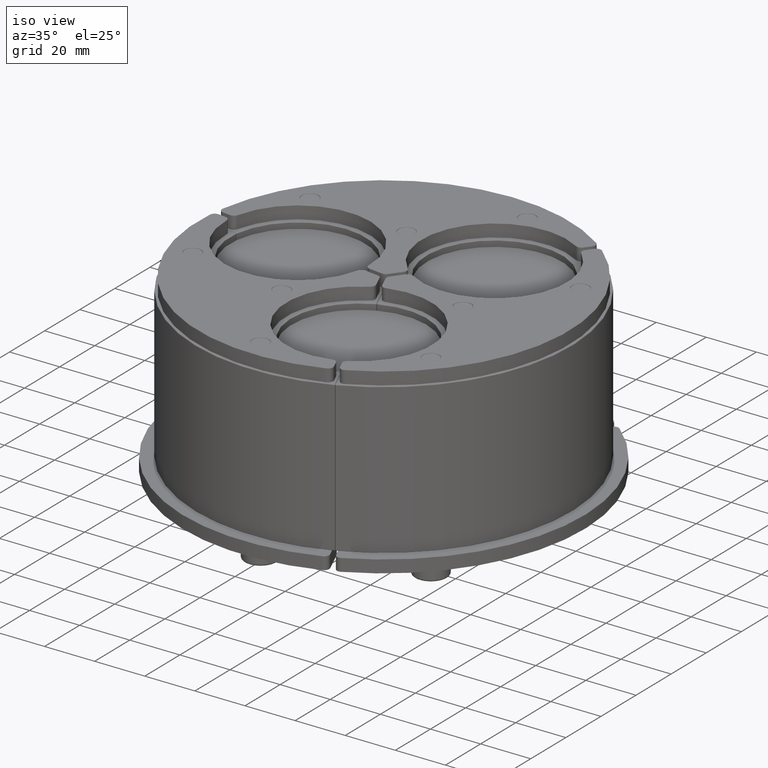
[diagram: clean part render]
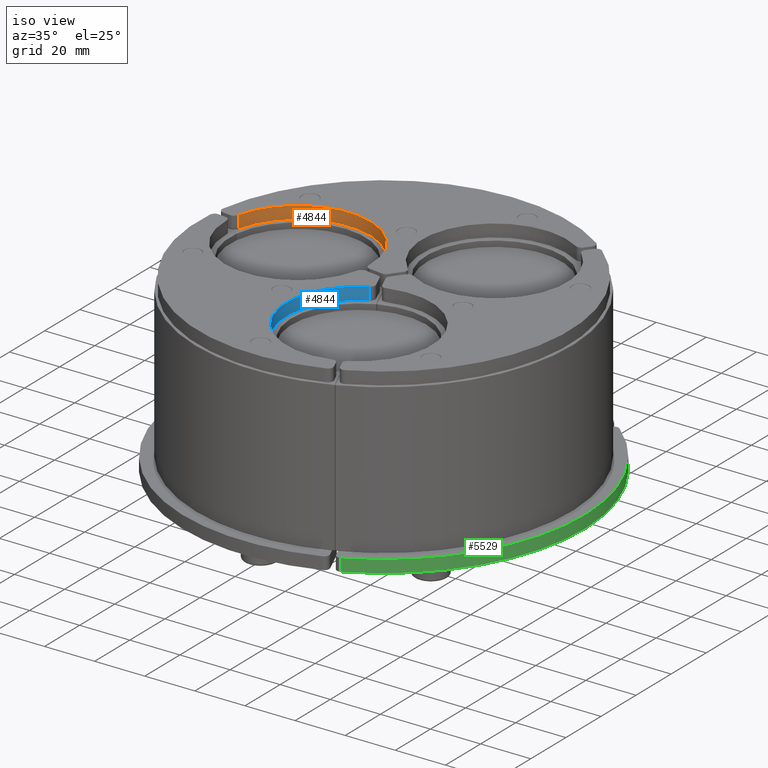
[diagram: same view with three faces highlighted in distinct colors, each labeled with its STEP entity id]
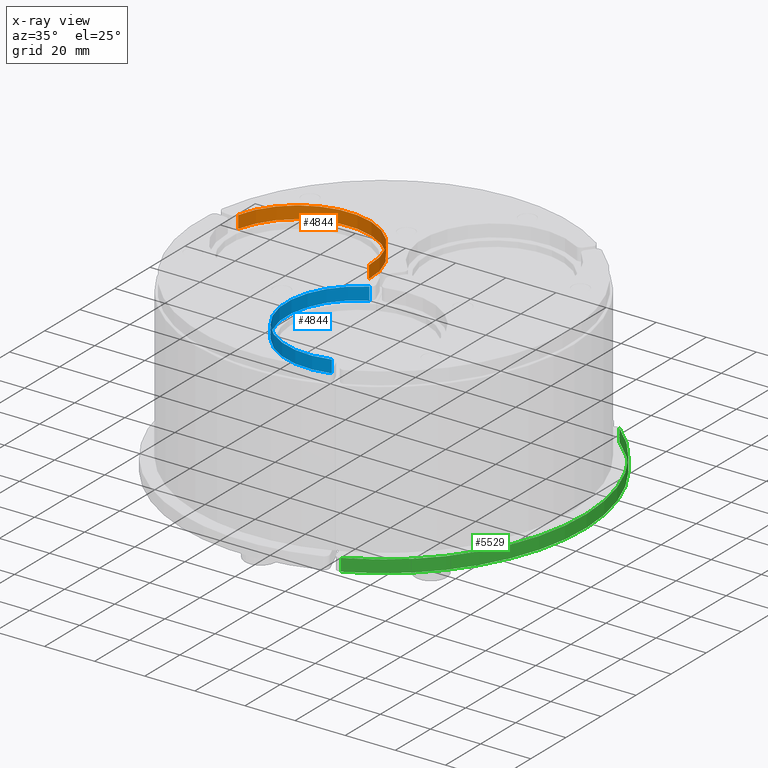
[diagram: x-ray of the same camera — body ghosted, the three highlighted faces saturated]
A machine part, iso view with three faces highlighted in distinct colors.
The next image is the same camera in x-ray (body ghosted, the three faces saturated) — at least one of them is partly hidden behind the body in this view.
Their STEP definitions:

[orange] entity #4844 — the highlighted cylindrical surface (partial cylindrical patch) has radius 29 mm, axis along (-0, -0, -1).
#4366=CARTESIAN_POINT('',(31.001483866659882,59.309048392888322,0.0));
#4367=VERTEX_POINT('',#4366);
#4375=CARTESIAN_POINT('',(2.137599350808055,9.315333907632265,0.0));
#4376=VERTEX_POINT('',#4375);
#4377=CARTESIAN_POINT('',(18.999999999999975,32.908965343808688,0.0));
#4378=DIRECTION('',(0.0,0.0,1.0));
#4379=DIRECTION('',(0.469839701462241,0.882751751586975,0.0));
#4380=AXIS2_PLACEMENT_3D('',#4377,#4378,#4379);
#4381=CIRCLE('',#4380,29.000000000000004);
#4382=EDGE_CURVE('',#4367,#4376,#4381,.T.);
#4534=CARTESIAN_POINT('',(31.001483866659882,59.309048392888322,5.0));
#4535=VERTEX_POINT('',#4534);
#4543=CARTESIAN_POINT('',(31.001483866659882,59.309048392888322,5.0));
#4544=DIRECTION('',(0.0,0.0,-1.0));
#4545=VECTOR('',#4544,5.0);
#4546=LINE('',#4543,#4545);
#4547=EDGE_CURVE('',#4535,#4367,#4546,.T.);
#4559=CARTESIAN_POINT('',(2.137599350808055,9.315333907632265,5.0));
#4560=VERTEX_POINT('',#4559);
#4577=CARTESIAN_POINT('',(2.137599350808053,9.315333907632265,0.0));
#4578=DIRECTION('',(0.0,0.0,1.0));
#4579=VECTOR('',#4578,5.0);
#4580=LINE('',#4577,#4579);
#4581=EDGE_CURVE('',#4376,#4560,#4580,.T.);
#4827=CARTESIAN_POINT('',(18.999999999999975,32.908965343808688,0.0));
#4828=DIRECTION('',(0.0,0.0,1.0));
#4829=DIRECTION('',(0.469839701462241,0.882751751586975,0.0));
#4830=AXIS2_PLACEMENT_3D('',#4827,#4828,#4829);
#4831=CYLINDRICAL_SURFACE('',#4830,29.000000000000004);
#4832=ORIENTED_EDGE('',*,*,#4547,.F.);
#4833=CARTESIAN_POINT('',(18.999999999999975,32.908965343808688,5.0));
#4834=DIRECTION('',(0.0,0.0,1.0));
#4835=DIRECTION('',(0.469839701462241,0.882751751586975,0.0));
#4836=AXIS2_PLACEMENT_3D('',#4833,#4834,#4835);
#4837=CIRCLE('',#4836,29.000000000000004);
#4838=EDGE_CURVE('',#4535,#4560,#4837,.T.);
#4839=ORIENTED_EDGE('',*,*,#4838,.T.);
#4840=ORIENTED_EDGE('',*,*,#4581,.F.);
#4841=ORIENTED_EDGE('',*,*,#4382,.F.);
#4842=EDGE_LOOP('',(#4832,#4839,#4840,#4841));
#4843=FACE_OUTER_BOUND('',#4842,.T.);
#4844=ADVANCED_FACE('',(#4843),#4831,.F.);

[blue] entity #4844 — the highlighted cylindrical surface (partial cylindrical patch) has radius 29 mm, axis along (-0, -0, -1).
#4366=CARTESIAN_POINT('',(31.001483866659882,59.309048392888322,0.0));
#4367=VERTEX_POINT('',#4366);
#4375=CARTESIAN_POINT('',(2.137599350808055,9.315333907632265,0.0));
#4376=VERTEX_POINT('',#4375);
#4377=CARTESIAN_POINT('',(18.999999999999975,32.908965343808688,0.0));
#4378=DIRECTION('',(0.0,0.0,1.0));
#4379=DIRECTION('',(0.469839701462241,0.882751751586975,0.0));
#4380=AXIS2_PLACEMENT_3D('',#4377,#4378,#4379);
#4381=CIRCLE('',#4380,29.000000000000004);
#4382=EDGE_CURVE('',#4367,#4376,#4381,.T.);
#4534=CARTESIAN_POINT('',(31.001483866659882,59.309048392888322,5.0));
#4535=VERTEX_POINT('',#4534);
#4543=CARTESIAN_POINT('',(31.001483866659882,59.309048392888322,5.0));
#4544=DIRECTION('',(0.0,0.0,-1.0));
#4545=VECTOR('',#4544,5.0);
#4546=LINE('',#4543,#4545);
#4547=EDGE_CURVE('',#4535,#4367,#4546,.T.);
#4559=CARTESIAN_POINT('',(2.137599350808055,9.315333907632265,5.0));
#4560=VERTEX_POINT('',#4559);
#4577=CARTESIAN_POINT('',(2.137599350808053,9.315333907632265,0.0));
#4578=DIRECTION('',(0.0,0.0,1.0));
#4579=VECTOR('',#4578,5.0);
#4580=LINE('',#4577,#4579);
#4581=EDGE_CURVE('',#4376,#4560,#4580,.T.);
#4827=CARTESIAN_POINT('',(18.999999999999975,32.908965343808688,0.0));
#4828=DIRECTION('',(0.0,0.0,1.0));
#4829=DIRECTION('',(0.469839701462241,0.882751751586975,0.0));
#4830=AXIS2_PLACEMENT_3D('',#4827,#4828,#4829);
#4831=CYLINDRICAL_SURFACE('',#4830,29.000000000000004);
#4832=ORIENTED_EDGE('',*,*,#4547,.F.);
#4833=CARTESIAN_POINT('',(18.999999999999975,32.908965343808688,5.0));
#4834=DIRECTION('',(0.0,0.0,1.0));
#4835=DIRECTION('',(0.469839701462241,0.882751751586975,0.0));
#4836=AXIS2_PLACEMENT_3D('',#4833,#4834,#4835);
#4837=CIRCLE('',#4836,29.000000000000004);
#4838=EDGE_CURVE('',#4535,#4560,#4837,.T.);
#4839=ORIENTED_EDGE('',*,*,#4838,.T.);
#4840=ORIENTED_EDGE('',*,*,#4581,.F.);
#4841=ORIENTED_EDGE('',*,*,#4382,.F.);
#4842=EDGE_LOOP('',(#4832,#4839,#4840,#4841));
#4843=FACE_OUTER_BOUND('',#4842,.T.);
#4844=ADVANCED_FACE('',(#4843),#4831,.F.);

[green] entity #5529 — the highlighted cylindrical surface (partial cylindrical patch) has radius 80 mm, axis along (-0, -0, -1).
#5075=CARTESIAN_POINT('',(37.305709701483337,70.769230769230887,5.0));
#5076=VERTEX_POINT('',#5075);
#5094=CARTESIAN_POINT('',(37.305709701483337,70.769230769230887,0.0));
#5095=VERTEX_POINT('',#5094);
#5103=CARTESIAN_POINT('',(37.305709701483337,70.769230769230887,0.0));
#5104=DIRECTION('',(0.0,0.0,1.0));
#5105=VECTOR('',#5104,5.0);
#5106=LINE('',#5103,#5105);
#5107=EDGE_CURVE('',#5095,#5076,#5106,.T.);
#5213=CARTESIAN_POINT('',(-79.940806503178976,3.076923076923021,0.0));
#5214=VERTEX_POINT('',#5213);
#5222=CARTESIAN_POINT('',(0.0,0.0,0.0));
#5223=DIRECTION('',(0.0,0.0,-1.0));
#5224=DIRECTION('',(-0.489135618426694,-0.872207742906663,0.0));
#5225=AXIS2_PLACEMENT_3D('',#5222,#5223,#5224);
#5226=CIRCLE('',#5225,80.000000000000014);
#5227=EDGE_CURVE('',#5214,#5095,#5226,.T.);
#5487=CARTESIAN_POINT('',(-79.940806503178976,3.076923076923021,5.0));
#5488=VERTEX_POINT('',#5487);
#5496=CARTESIAN_POINT('',(-79.940806503178962,3.07692307692302,5.0));
#5497=DIRECTION('',(0.0,0.0,-1.0));
#5498=VECTOR('',#5497,5.0);
#5499=LINE('',#5496,#5498);
#5500=EDGE_CURVE('',#5488,#5214,#5499,.T.);
#5512=CARTESIAN_POINT('',(0.0,0.0,0.0));
#5513=DIRECTION('',(0.0,0.0,1.0));
#5514=DIRECTION('',(-0.489135618426694,-0.872207742906663,0.0));
#5515=AXIS2_PLACEMENT_3D('',#5512,#5513,#5514);
#5516=CYLINDRICAL_SURFACE('',#5515,80.000000000000028);
#5517=ORIENTED_EDGE('',*,*,#5107,.F.);
#5518=ORIENTED_EDGE('',*,*,#5227,.F.);
#5519=ORIENTED_EDGE('',*,*,#5500,.F.);
#5520=CARTESIAN_POINT('',(0.0,0.0,5.0));
#5521=DIRECTION('',(0.0,0.0,-1.0));
#5522=DIRECTION('',(-0.489135618426694,-0.872207742906663,0.0));
#5523=AXIS2_PLACEMENT_3D('',#5520,#5521,#5522);
#5524=CIRCLE('',#5523,80.000000000000014);
#5525=EDGE_CURVE('',#5488,#5076,#5524,.T.);
#5526=ORIENTED_EDGE('',*,*,#5525,.T.);
#5527=EDGE_LOOP('',(#5517,#5518,#5519,#5526));
#5528=FACE_OUTER_BOUND('',#5527,.T.);
#5529=ADVANCED_FACE('',(#5528),#5516,.T.);